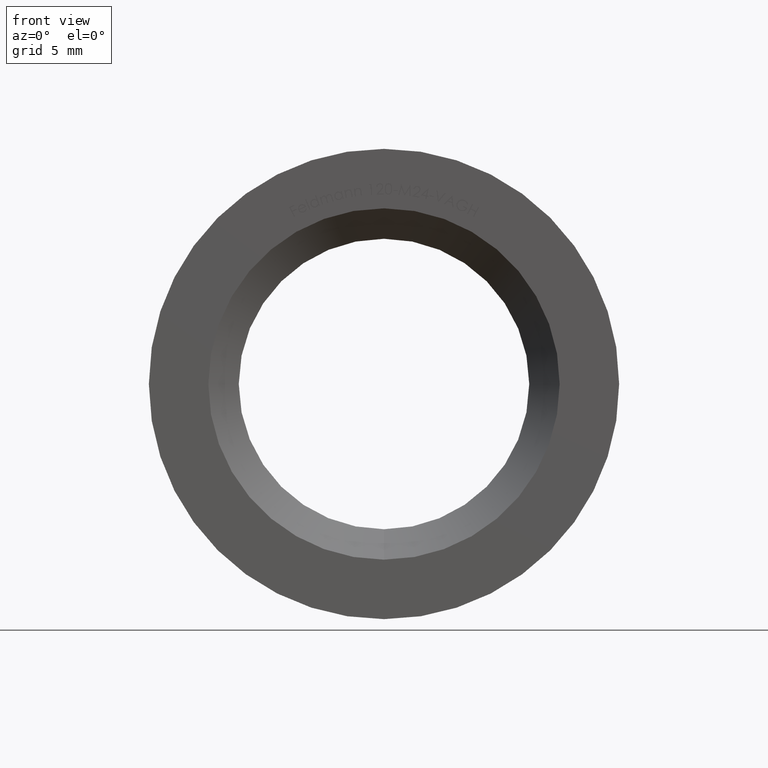
[diagram: clean part render]
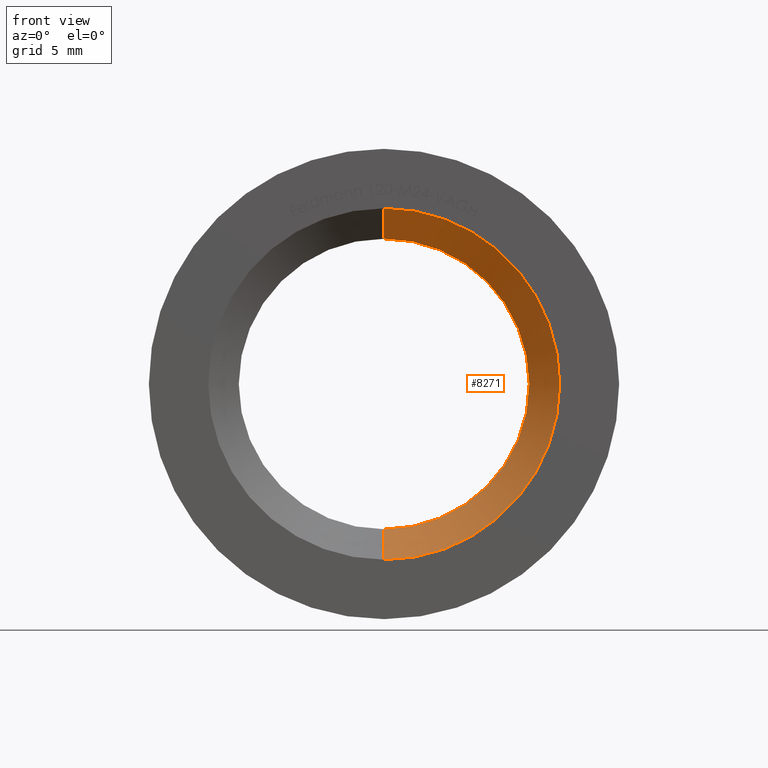
[diagram: same view with one face highlighted and labeled with its STEP entity id]
A machine part, front view. The second image highlights one B-rep face of the part: STEP entity #8271.
In plain terms, the highlighted conical surface has half-angle 45 deg.
Its self-contained STEP definition (entity closure, byte-faithful):
#221 = EDGE_CURVE ( 'NONE', #4695, #2394, #7133, .T. ) ;
#607 = ORIENTED_EDGE ( 'NONE', *, *, #7079, .F. ) ;
#1502 = VERTEX_POINT ( 'NONE', #8986 ) ;
#1537 = CARTESIAN_POINT ( 'NONE',  ( -3.061616997868381200E-016, 2.200000000000007300, 0.0000000000000000000 ) ) ;
#2389 = EDGE_CURVE ( 'NONE', #7295, #1502, #10983, .T. ) ;
#2394 = VERTEX_POINT ( 'NONE', #8030 ) ;
#2738 = AXIS2_PLACEMENT_3D ( 'NONE', #1537, #11920, #8190 ) ;
#2744 = FACE_OUTER_BOUND ( 'NONE', #4024, .T. ) ;
#2821 = ORIENTED_EDGE ( 'NONE', *, *, #2389, .F. ) ;
#3040 = EDGE_CURVE ( 'NONE', #2394, #1502, #5005, .T. ) ;
#4024 = EDGE_LOOP ( 'NONE', ( #607, #10161, #11172, #2821 ) ) ;
#4299 = CARTESIAN_POINT ( 'NONE',  ( -3.061616997868381200E-016, 2.200000000000007300, 0.0000000000000000000 ) ) ;
#4381 = CARTESIAN_POINT ( 'NONE',  ( 1.249139735130299800E-015, 0.0000000000000000000, 12.69999999999999400 ) ) ;
#4491 = CARTESIAN_POINT ( 'NONE',  ( -3.061616997868381200E-016, 2.200000000000007300, -10.49999999999999600 ) ) ;
#4611 = DIRECTION ( 'NONE',  ( 0.0000000000000000000, -0.7071067811865491300, -0.7071067811865459100 ) ) ;
#4695 = VERTEX_POINT ( 'NONE', #11921 ) ;
#5005 = LINE ( 'NONE', #4491, #7871 ) ;
#5740 = AXIS2_PLACEMENT_3D ( 'NONE', #10960, #6310, #10923 ) ;
#5761 = DIRECTION ( 'NONE',  ( 8.659560562354911900E-017, -0.7071067811865491300, 0.7071067811865459100 ) ) ;
#5859 = CONICAL_SURFACE ( 'NONE', #8210, 10.49999999999999600, 0.7853981633974459500 ) ;
#6310 = DIRECTION ( 'NONE',  ( -0.0000000000000000000, 1.000000000000000000, -0.0000000000000000000 ) ) ;
#7079 = EDGE_CURVE ( 'NONE', #4695, #7295, #12212, .T. ) ;
#7133 = CIRCLE ( 'NONE', #2738, 10.49999999999999600 ) ;
#7295 = VERTEX_POINT ( 'NONE', #4381 ) ;
#7871 = VECTOR ( 'NONE', #4611, 1000.000000000000100 ) ;
#8030 = CARTESIAN_POINT ( 'NONE',  ( -3.061616997868381200E-016, 2.200000000000007300, -10.49999999999999600 ) ) ;
#8190 = DIRECTION ( 'NONE',  ( 0.0000000000000000000, 0.0000000000000000000, 1.000000000000000000 ) ) ;
#8210 = AXIS2_PLACEMENT_3D ( 'NONE', #4299, #10046, #9895 ) ;
#8271 = ADVANCED_FACE ( 'NONE', ( #2744 ), #5859, .F. ) ;
#8986 = CARTESIAN_POINT ( 'NONE',  ( -3.061616997868381200E-016, 0.0000000000000000000, -12.69999999999999400 ) ) ;
#9895 = DIRECTION ( 'NONE',  ( 0.0000000000000000000, 0.0000000000000000000, -1.000000000000000000 ) ) ;
#10046 = DIRECTION ( 'NONE',  ( 0.0000000000000000000, -1.000000000000000000, 0.0000000000000000000 ) ) ;
#10161 = ORIENTED_EDGE ( 'NONE', *, *, #221, .T. ) ;
#10923 = DIRECTION ( 'NONE',  ( 0.0000000000000000000, 0.0000000000000000000, 1.000000000000000000 ) ) ;
#10960 = CARTESIAN_POINT ( 'NONE',  ( -3.061616997868381200E-016, 0.0000000000000000000, 0.0000000000000000000 ) ) ;
#10983 = CIRCLE ( 'NONE', #5740, 12.69999999999999400 ) ;
#11171 = VECTOR ( 'NONE', #5761, 1000.000000000000100 ) ;
#11172 = ORIENTED_EDGE ( 'NONE', *, *, #3040, .T. ) ;
#11920 = DIRECTION ( 'NONE',  ( -0.0000000000000000000, 1.000000000000000000, -0.0000000000000000000 ) ) ;
#11921 = CARTESIAN_POINT ( 'NONE',  ( 1.114428587224091100E-015, 2.200000000000007300, 10.49999999999999600 ) ) ;
#12143 = CARTESIAN_POINT ( 'NONE',  ( 9.797174393178823700E-016, 2.200000000000007300, 10.49999999999999600 ) ) ;
#12212 = LINE ( 'NONE', #12143, #11171 ) ;